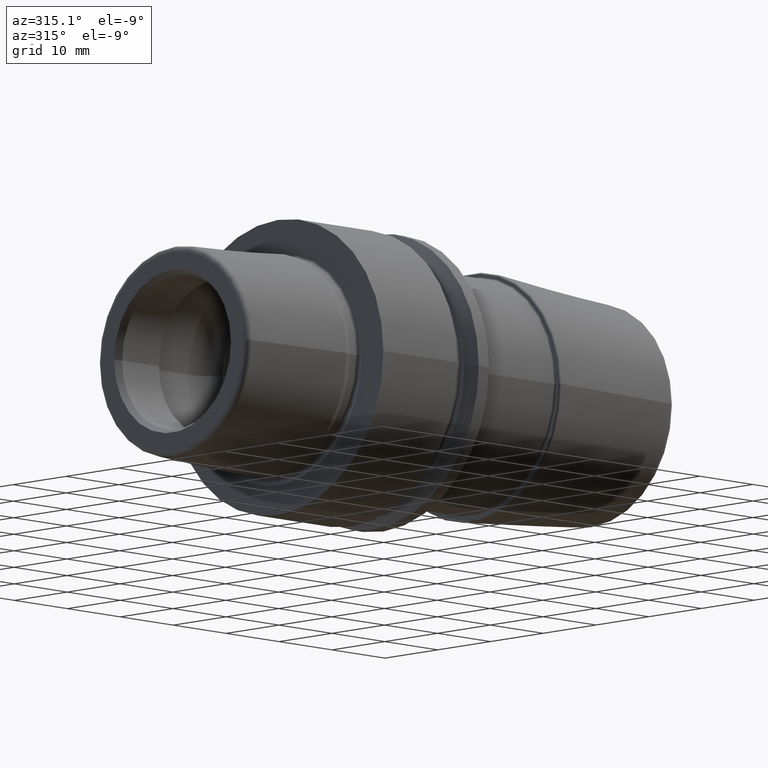
[diagram: clean part render]
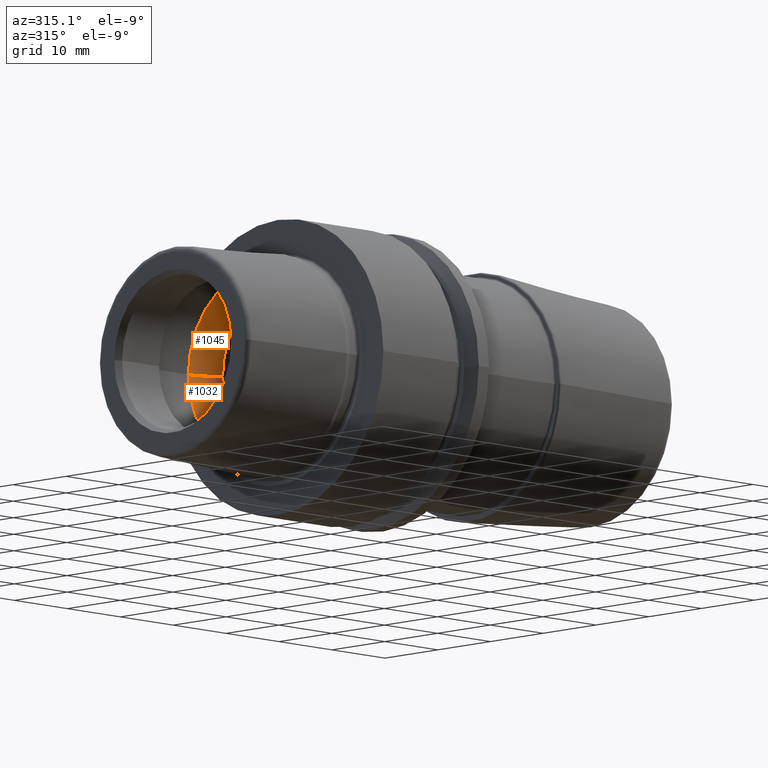
[diagram: same view with one multi-face feature highlighted, each face labeled with its STEP entity id]
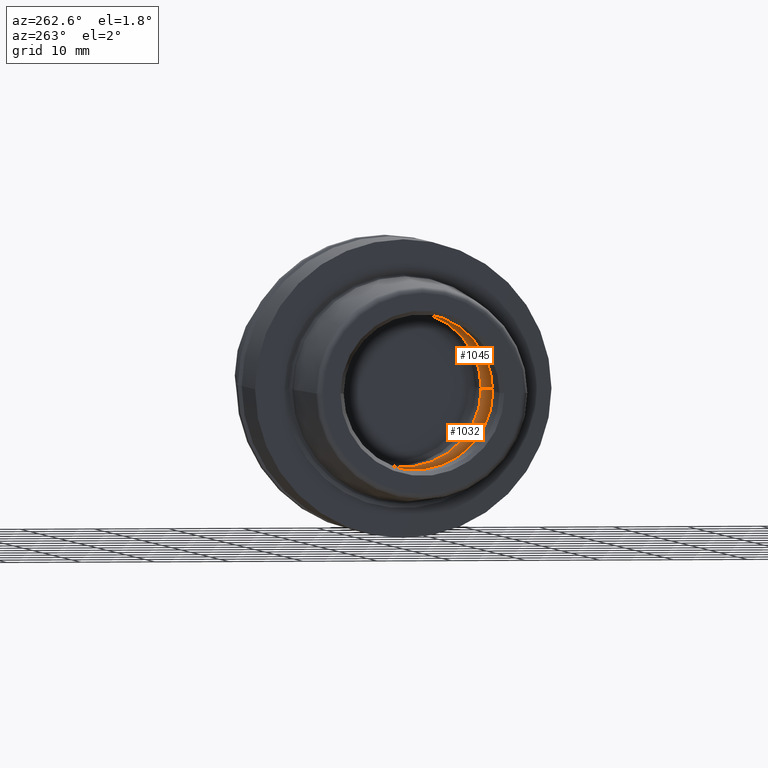
[diagram: same view with one multi-face feature highlighted, each face labeled with its STEP entity id]
A machine part, auxiliary view. The highlighted faces form ONE feature: a constant-radius fillet chain: 2 tangent blend faces with common blend radius 5 mm. The faces share edges in the B-rep.
A second angle (auxiliary view) of the same feature is appended — it is thin or edge-on in the first view.
Their STEP definitions:
[1] entity #1032 (Torus):
#161=CARTESIAN_POINT('',(-4.183373967266E0,0.E0,0.E0));
#162=DIRECTION('',(-1.E0,0.E0,0.E0));
#163=DIRECTION('',(0.E0,1.E0,0.E0));
#164=AXIS2_PLACEMENT_3D('',#161,#162,#163);
#170=CARTESIAN_POINT('',(-4.183373967266E0,7.7825E0,0.E0));
#171=DIRECTION('',(0.E0,0.E0,1.E0));
#172=DIRECTION('',(8.366747934532E-1,5.477E-1,0.E0));
#173=AXIS2_PLACEMENT_3D('',#170,#171,#172);
#175=CARTESIAN_POINT('',(0.E0,0.E0,0.E0));
#176=DIRECTION('',(-1.E0,0.E0,0.E0));
#177=DIRECTION('',(0.E0,1.E0,0.E0));
#178=AXIS2_PLACEMENT_3D('',#175,#176,#177);
#180=CARTESIAN_POINT('',(-4.183373967266E0,-7.7825E0,0.E0));
#181=DIRECTION('',(0.E0,0.E0,-1.E0));
#182=DIRECTION('',(8.366747934532E-1,-5.477E-1,0.E0));
#183=AXIS2_PLACEMENT_3D('',#180,#181,#182);
#708=CARTESIAN_POINT('',(0.E0,1.0521E1,0.E0));
#709=VERTEX_POINT('',#708);
#710=CARTESIAN_POINT('',(-4.183373967266E0,1.27825E1,0.E0));
#711=VERTEX_POINT('',#710);
#720=CARTESIAN_POINT('',(0.E0,-1.0521E1,0.E0));
#721=VERTEX_POINT('',#720);
#722=CARTESIAN_POINT('',(-4.183373967266E0,-1.27825E1,0.E0));
#723=VERTEX_POINT('',#722);
#1018=CARTESIAN_POINT('',(-4.183373967266E0,0.E0,0.E0));
#1019=DIRECTION('',(1.E0,0.E0,0.E0));
#1020=DIRECTION('',(0.E0,-1.E0,0.E0));
#1021=AXIS2_PLACEMENT_3D('',#1018,#1019,#1020);
#1022=TOROIDAL_SURFACE('',#1021,7.7825E0,5.E0);
#1024=ORIENTED_EDGE('',*,*,#1023,.F.);
#1026=ORIENTED_EDGE('',*,*,#1025,.T.);
#1028=ORIENTED_EDGE('',*,*,#1027,.T.);
#1029=ORIENTED_EDGE('',*,*,#1011,.F.);
#1030=EDGE_LOOP('',(#1024,#1026,#1028,#1029));
#1031=FACE_OUTER_BOUND('',#1030,.F.);
#1032=ADVANCED_FACE('',(#1031),#1022,.F.);
#165=CIRCLE('',#164,1.27825E1);
#174=CIRCLE('',#173,5.E0);
#179=CIRCLE('',#178,1.0521E1);
#184=CIRCLE('',#183,5.E0);
#1011=EDGE_CURVE('',#711,#723,#165,.T.);
#1023=EDGE_CURVE('',#709,#711,#174,.T.);
#1025=EDGE_CURVE('',#709,#721,#179,.T.);
#1027=EDGE_CURVE('',#721,#723,#184,.T.);
[2] entity #1045 (Torus):
#152=CARTESIAN_POINT('',(-4.183373967266E0,0.E0,0.E0));
#153=DIRECTION('',(1.E0,0.E0,0.E0));
#154=DIRECTION('',(0.E0,1.E0,0.E0));
#155=AXIS2_PLACEMENT_3D('',#152,#153,#154);
#170=CARTESIAN_POINT('',(-4.183373967266E0,7.7825E0,0.E0));
#171=DIRECTION('',(0.E0,0.E0,1.E0));
#172=DIRECTION('',(8.366747934532E-1,5.477E-1,0.E0));
#173=AXIS2_PLACEMENT_3D('',#170,#171,#172);
#180=CARTESIAN_POINT('',(-4.183373967266E0,-7.7825E0,0.E0));
#181=DIRECTION('',(0.E0,0.E0,-1.E0));
#182=DIRECTION('',(8.366747934532E-1,-5.477E-1,0.E0));
#183=AXIS2_PLACEMENT_3D('',#180,#181,#182);
#185=CARTESIAN_POINT('',(0.E0,0.E0,0.E0));
#186=DIRECTION('',(1.E0,0.E0,0.E0));
#187=DIRECTION('',(0.E0,1.E0,0.E0));
#188=AXIS2_PLACEMENT_3D('',#185,#186,#187);
#708=CARTESIAN_POINT('',(0.E0,1.0521E1,0.E0));
#709=VERTEX_POINT('',#708);
#710=CARTESIAN_POINT('',(-4.183373967266E0,1.27825E1,0.E0));
#711=VERTEX_POINT('',#710);
#720=CARTESIAN_POINT('',(0.E0,-1.0521E1,0.E0));
#721=VERTEX_POINT('',#720);
#722=CARTESIAN_POINT('',(-4.183373967266E0,-1.27825E1,0.E0));
#723=VERTEX_POINT('',#722);
#1033=CARTESIAN_POINT('',(-4.183373967266E0,0.E0,0.E0));
#1034=DIRECTION('',(1.E0,0.E0,0.E0));
#1035=DIRECTION('',(0.E0,-1.E0,0.E0));
#1036=AXIS2_PLACEMENT_3D('',#1033,#1034,#1035);
#1037=TOROIDAL_SURFACE('',#1036,7.7825E0,5.E0);
#1038=ORIENTED_EDGE('',*,*,#1023,.T.);
#1039=ORIENTED_EDGE('',*,*,#1000,.T.);
#1040=ORIENTED_EDGE('',*,*,#1027,.F.);
#1042=ORIENTED_EDGE('',*,*,#1041,.F.);
#1043=EDGE_LOOP('',(#1038,#1039,#1040,#1042));
#1044=FACE_OUTER_BOUND('',#1043,.F.);
#1045=ADVANCED_FACE('',(#1044),#1037,.F.);
#156=CIRCLE('',#155,1.27825E1);
#174=CIRCLE('',#173,5.E0);
#184=CIRCLE('',#183,5.E0);
#189=CIRCLE('',#188,1.0521E1);
#1000=EDGE_CURVE('',#711,#723,#156,.T.);
#1023=EDGE_CURVE('',#709,#711,#174,.T.);
#1027=EDGE_CURVE('',#721,#723,#184,.T.);
#1041=EDGE_CURVE('',#709,#721,#189,.T.);